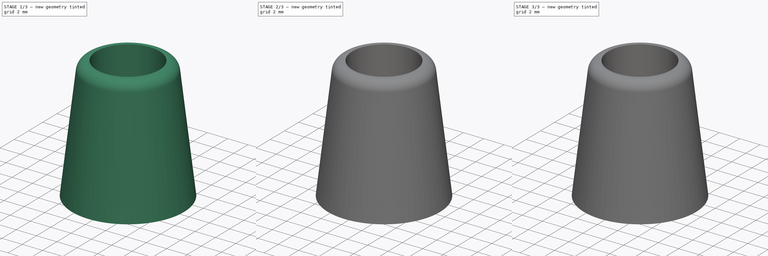
[diagram: build sequence overview — one tinted view per stage of 3, left to right]
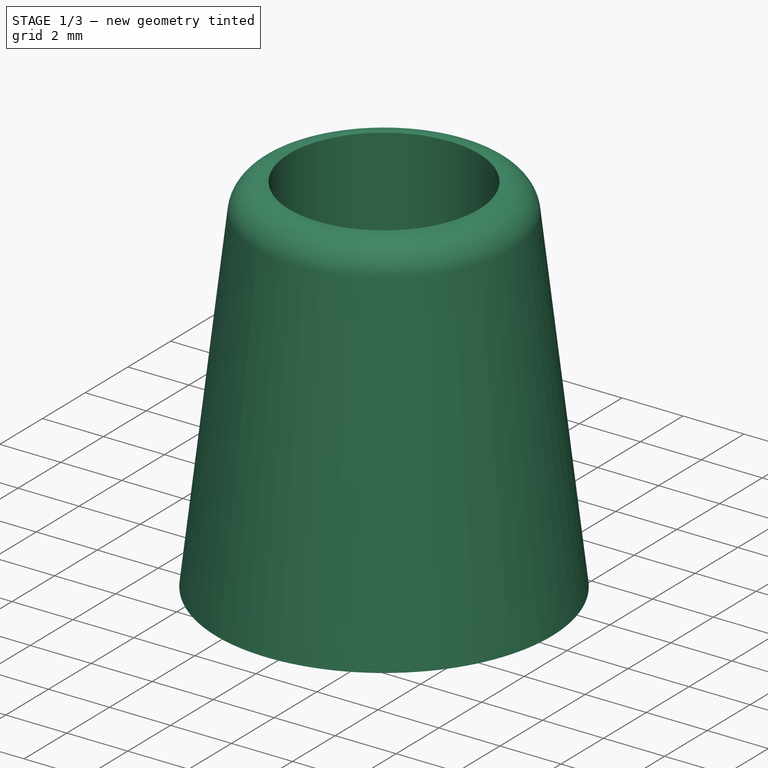
[diagram: stage 1 of 3 — iso view after this stage's code; geometry added in this stage tinted green]
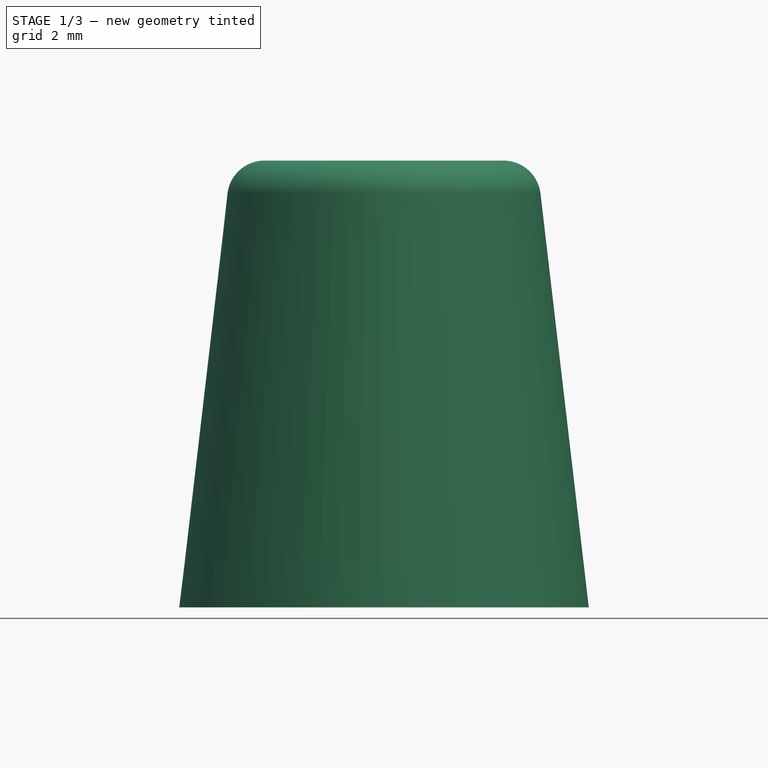
[diagram: stage 1 of 3 — front view after this stage's code; geometry added in this stage tinted green]
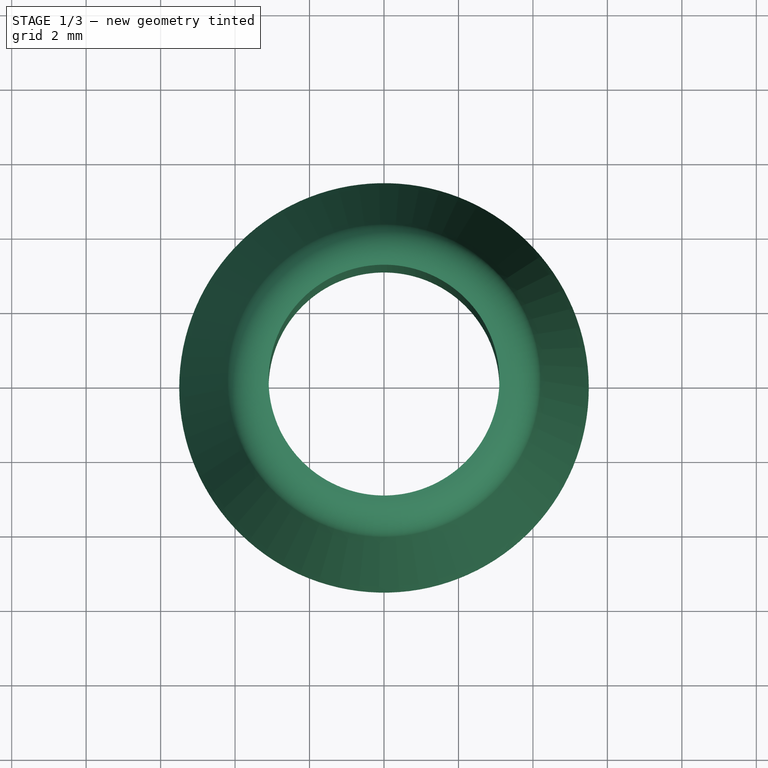
[diagram: stage 1 of 3 — top view after this stage's code; geometry added in this stage tinted green]
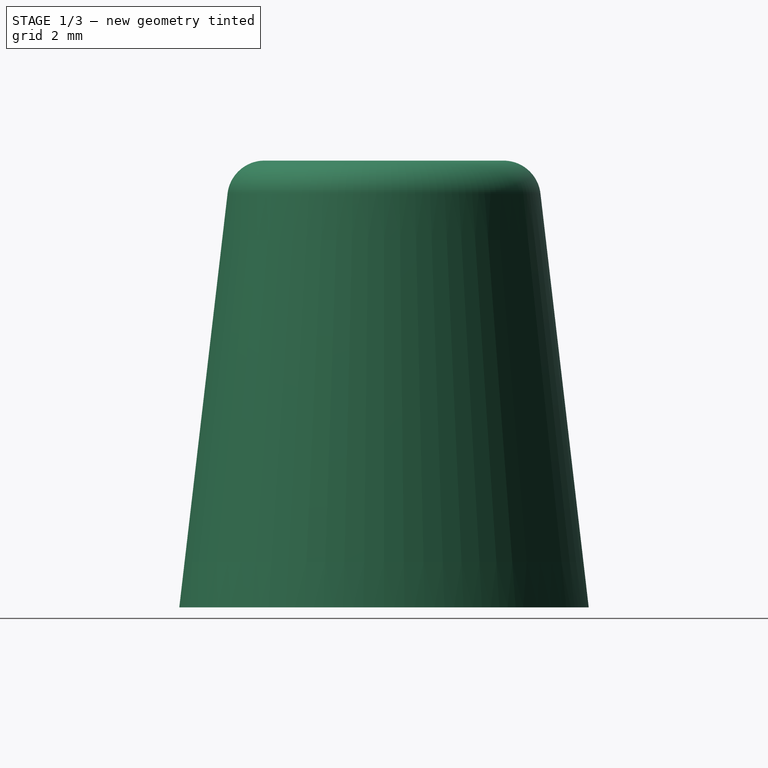
[diagram: stage 1 of 3 — right view after this stage's code; geometry added in this stage tinted green]
FCSTD DOCUMENT  (FreeCAD 0.21RUnknown)
Label: drill-alignment-tool
License: All rights reserved
LicenseURL: http://en.wikipedia.org/wiki/All_rights_reserved
objects: Sketcher::SketchObject×3, PartDesign::Fillet×2, PartDesign::Body×2, Spreadsheet::Sheet×1, PartDesign::Pad×1, PartDesign::AdditiveLoft×1, Part::Cut×1
note: 14 computed .brp shape members not serialized (recipe doc carries the construction recipe); baked Part::Feature solids carry a one-line shape summary decoded from their .brp

FEATURE [PartDesign::Body] Body002  label="Index"
  Group = -> [Sketch003,Pad001,Fillet]
  Origin = -> Origin002
  Tip = -> Fillet
FEATURE [PartDesign::AdditiveLoft] AdditiveLoft
  Closed = false
  Profile = -> Sketch001
  Ruled = false
  Sections = -> [Sketch002]
FEATURE [PartDesign::Fillet] Fillet001
  Base = -> AdditiveLoft [Edge5]
  BaseFeature = -> AdditiveLoft
  Radius = 1
  SupportTransform = false
  UseAllEdges = false
  expr: Radius = (<<Spreadsheet>>.Head_R - <<Spreadsheet>>.Head_Inner_R) * 0.5
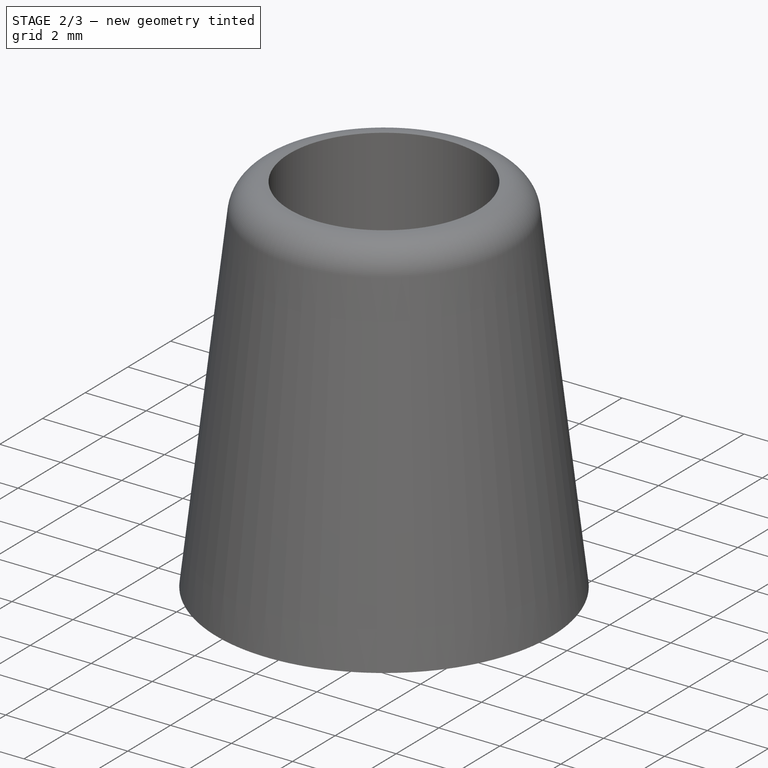
[diagram: stage 2 of 3 — iso view after this stage's code; geometry added in this stage tinted green]
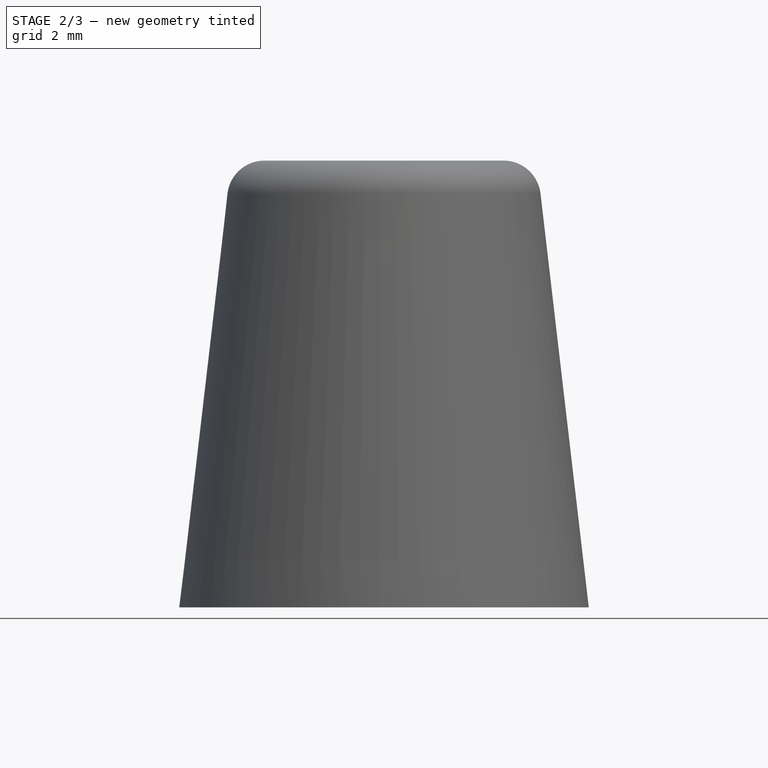
[diagram: stage 2 of 3 — front view after this stage's code; geometry added in this stage tinted green]
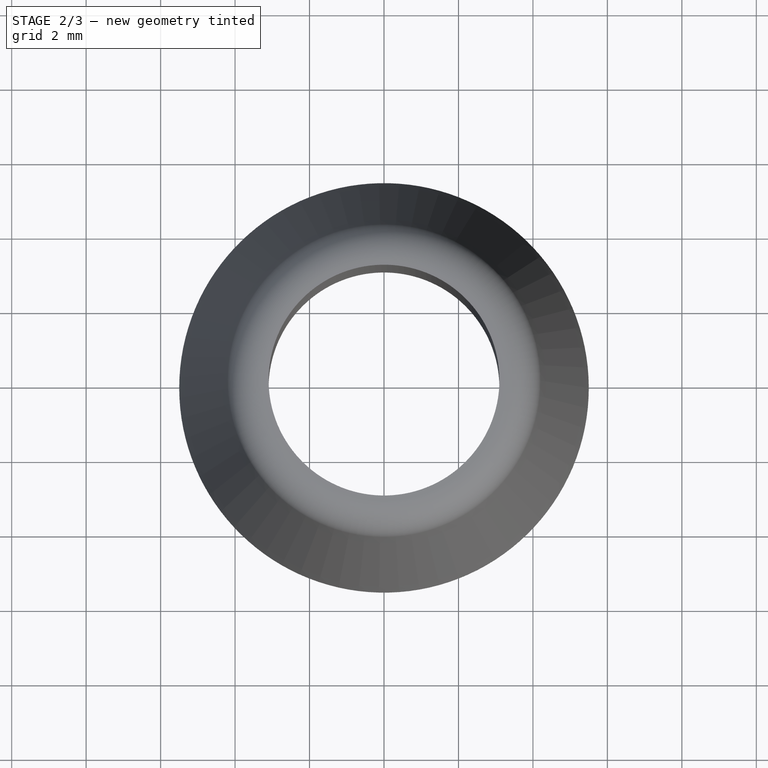
[diagram: stage 2 of 3 — top view after this stage's code; geometry added in this stage tinted green]
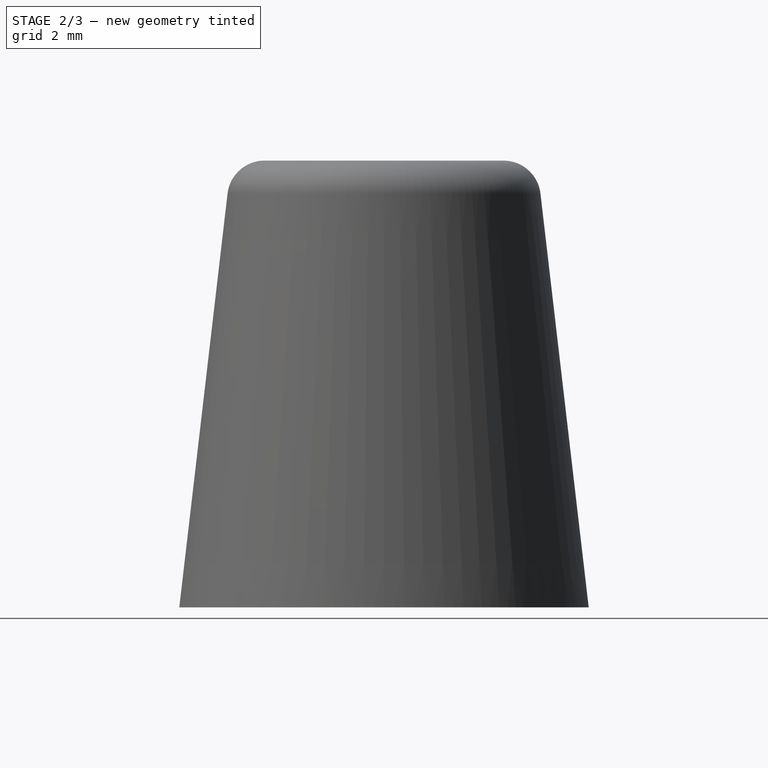
[diagram: stage 2 of 3 — right view after this stage's code; geometry added in this stage tinted green]
FEATURE [Spreadsheet::Sheet] Spreadsheet
  cells = A1='TOOL; A2='NAME; B2='DEFAULT; C2='VALUE; D2='COMMENT; A3='Tool_Size; B3==5 mm; C3(Tool_Size)==6 mm; D3='Shank diameter [+-0.1mm] of the tool (the part that goes in the drill); A4='Tool_Tolerance; B4==0.2 mm; C4(Tool_Tolerance)==0.2 mm; D4='Tolerance between the tool and the part, 0.2mm recommended; D5='DRILL SLOWLY!; A7='PART; A8='NAME; B8='DEFAULT; C8='VALUE; D8='COMMENT; A9='Head_R; B9==7.6 mm; C9(Head_R)==Tool_Size + Tool_Tolerance + 5 * Printer_Wall_Thickness; D9='6 Walls; A10='Head_Inner_R; B10==5.2 mm; C10(Head_Inner_R)==Feet_Inner_R; A11='Feet_R; B11==10 mm; C11(Feet_R)==Tool_Size + Tool_Tolerance + 12 * Printer_Wall_Thickness; A12='Feet_Inner_R; B12==5 mm; C12(Feet_Inner_R)==Tool_Size + Tool_Tolerance; A13='Part_Height; B13==6 mm; C13(Part_Height)==Printer_Layer_Height * 60; A15='INDEX; A16='NAME; B16='DEFAULT; C16='VALUE; D16='COMMENT; A17='Index_R; C17(Index_R)==Tool_Size + Tool_Tolerance + 4 * Printer_Wall_Thickness; A18='Index_Height; C18(Index_Height)==8 * Printer_Wall_Thickness; A20='3D_Printer Settings; A21='NAME; B21='DEFAULT; C21='VALUE; D21='COMMENT; A22='Printer_Layer_Height; B22==0.2 mm; C22(Printer_Layer_Height)==0.2 mm; A23='Printer_Wall_Thickness; B23==0.4 mm; C23(Printer_Wall_Thickness)==0.4 mm; D23='Rated at least brass hardness; A24='Material; B24='rPLA; C24='rPLA; A25='Nozzle Temperature; B25==480 K; C25==480 K
FEATURE [Sketcher::SketchObject] Sketch001  label="Feet"
  FullyConstrained = true
  MapMode = 5
  Support = -> [XY_Plane001]
  expr: Constraints[1] = Spreadsheet.Feet_Inner_R
  expr: Constraints[3] = Spreadsheet.Feet_R
  sketch-geometry (2):
    g0: Circle CenterX=0 CenterY=0 CenterZ=0 NormalX=0 NormalY=0 NormalZ=1 AngleXU=0 Radius=3.1
    g1: Circle CenterX=0 CenterY=0 CenterZ=0 NormalX=0 NormalY=0 NormalZ=1 AngleXU=0 Radius=5.5
  constraints (4):
    c: Coincident(g0,g-1)
    c: Diameter(g0) = 6.2
    c: Coincident(g1,g0)
    c: Diameter(g1) = 11
FEATURE [Sketcher::SketchObject] Sketch002  label="Head"
  AttachmentOffset = pos=(0,0,12) rot=(0,0,1;0rad)
  FullyConstrained = true
  MapMode = 5
  Placement = pos=(0,0,12) rot=(0,0,1;0rad)
  Support = -> [XY_Plane001]
  expr: .AttachmentOffset.Base.z = Spreadsheet.Part_Height
  expr: Constraints[1] = Spreadsheet.Head_Inner_R
  expr: Constraints[3] = Spreadsheet.Head_R
  sketch-geometry (2):
    g0: Circle CenterX=0 CenterY=0 CenterZ=0 NormalX=0 NormalY=0 NormalZ=1 AngleXU=0 Radius=3.1
    g1: Circle CenterX=0 CenterY=0 CenterZ=0 NormalX=0 NormalY=0 NormalZ=1 AngleXU=0 Radius=4.1
  constraints (4):
    c: Coincident(g0,g-1)
    c: Diameter(g0) = 6.2
    c: Coincident(g1,g0)
    c: Diameter(g1) = 8.2
FEATURE [Sketcher::SketchObject] Sketch003
  FullyConstrained = true
  MapMode = 5
  Support = -> [XY_Plane002]
  expr: Constraints[1] = <<Spreadsheet>>.Index_R
  expr: Constraints[3] = <<Spreadsheet>>.Tool_Size + <<Spreadsheet>>.Tool_Tolerance
  sketch-geometry (2):
    g0: Circle CenterX=0 CenterY=0 CenterZ=0 NormalX=0 NormalY=0 NormalZ=1 AngleXU=0 Radius=3.9
    g1: Circle CenterX=0 CenterY=0 CenterZ=0 NormalX=0 NormalY=0 NormalZ=1 AngleXU=0 Radius=3.1
  constraints (4):
    c: Coincident(g0,g-1)
    c: Diameter(g0) = 7.8
    c: Coincident(g1,g0)
    c: Diameter(g1) = 6.2
FEATURE [PartDesign::Pad] Pad001
  Direction = (0,0,1)
  Length = 3.2
  Length2 = 10
  Profile = -> Sketch003
  ReferenceAxis = -> Sketch003 [N_Axis]
  Type = 0
  expr: Length = <<Spreadsheet>>.Index_Height
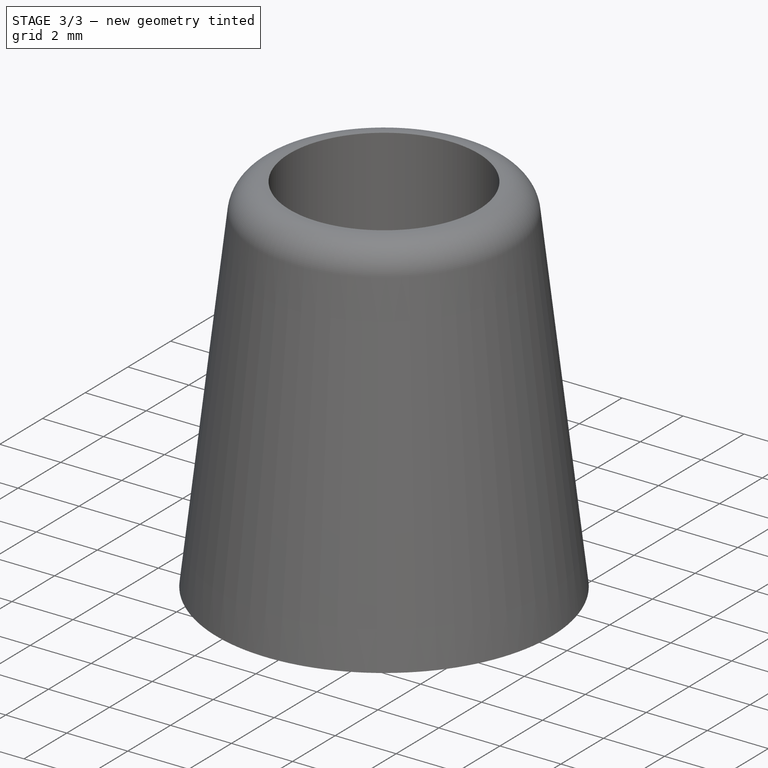
[diagram: stage 3 of 3 — iso view after this stage's code; geometry added in this stage tinted green]
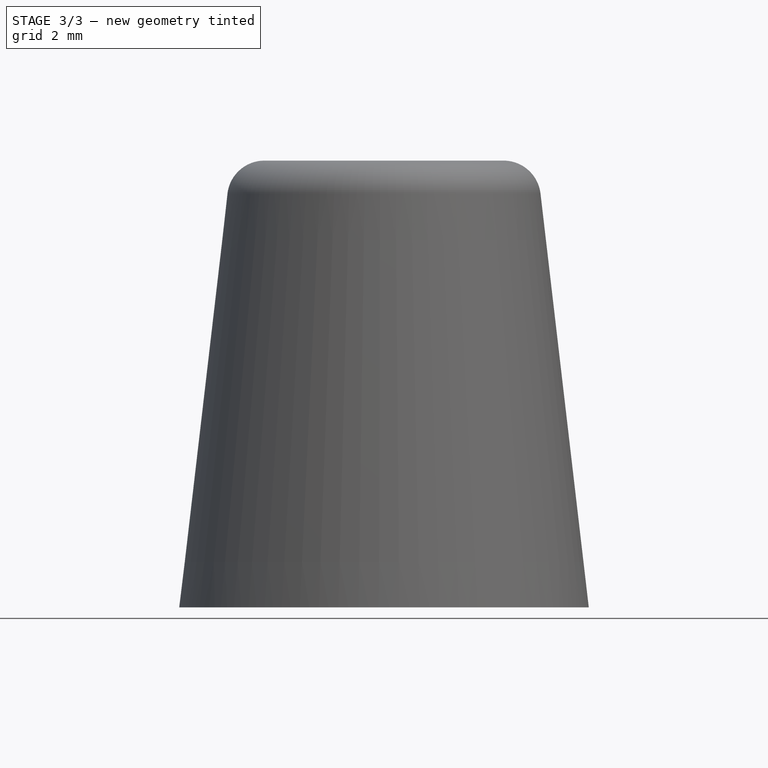
[diagram: stage 3 of 3 — front view after this stage's code; geometry added in this stage tinted green]
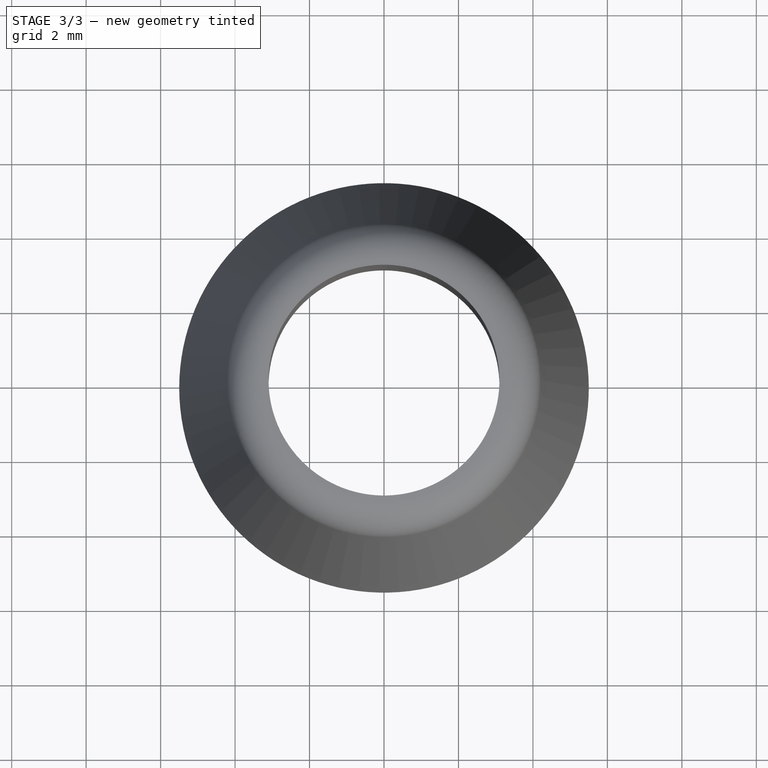
[diagram: stage 3 of 3 — top view after this stage's code; geometry added in this stage tinted green]
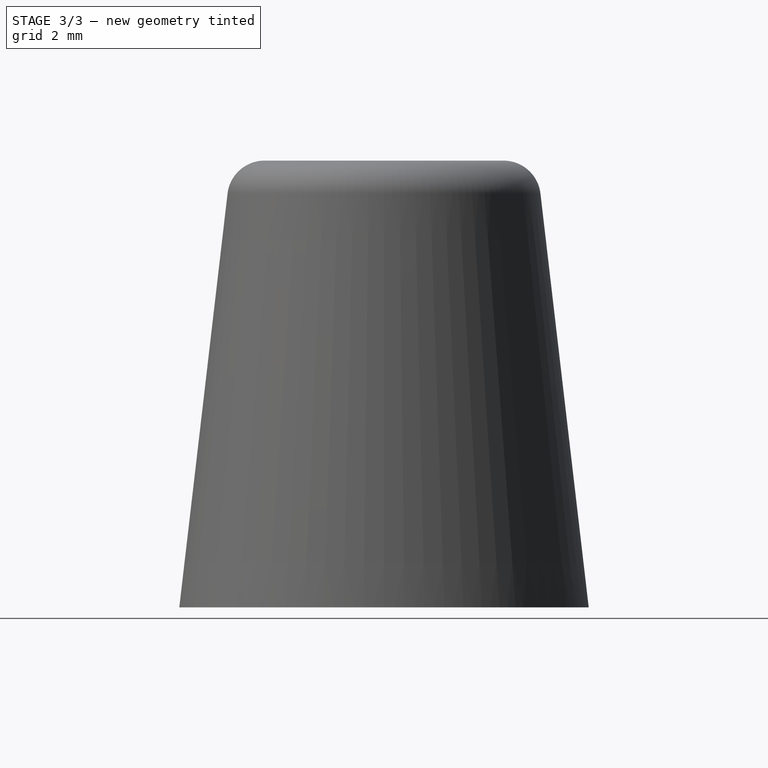
[diagram: stage 3 of 3 — right view after this stage's code; geometry added in this stage tinted green]
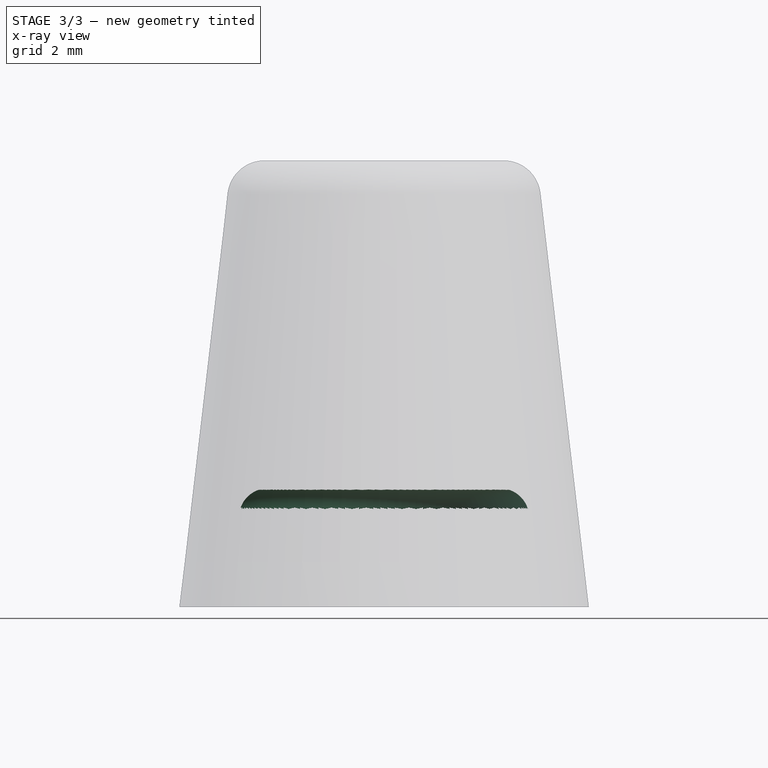
[diagram: stage 3 of 3 — x-ray composite at the front view; earlier geometry ghosted, this stage's added geometry solid]
FEATURE [PartDesign::Fillet] Fillet
  Base = -> Pad001 [Edge3]
  BaseFeature = -> Pad001
  Radius = 0.79
  SupportTransform = false
  UseAllEdges = false
  expr: Radius = (<<Spreadsheet>>.Index_R - (<<Spreadsheet>>.Tool_Size + <<Spreadsheet>>.Tool_Tolerance)) * 0.5 - 0.01 mm
FEATURE [PartDesign::Body] Body001  label="Part"
  Group = -> [Sketch001,Sketch002,AdditiveLoft,Fillet001]
  Origin = -> Origin001
  Tip = -> Fillet001
  expr: .Placement.Base.z = 0
FEATURE [Part::Cut] Cut
  Base = -> Body001
  Tool = -> Body002
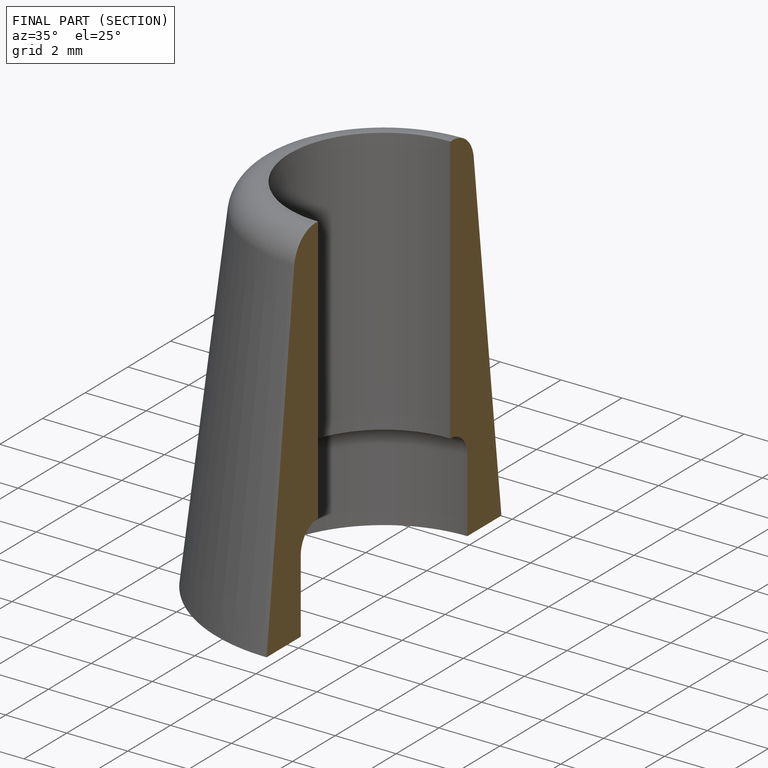
[diagram: finished part — half-section view (interior)]
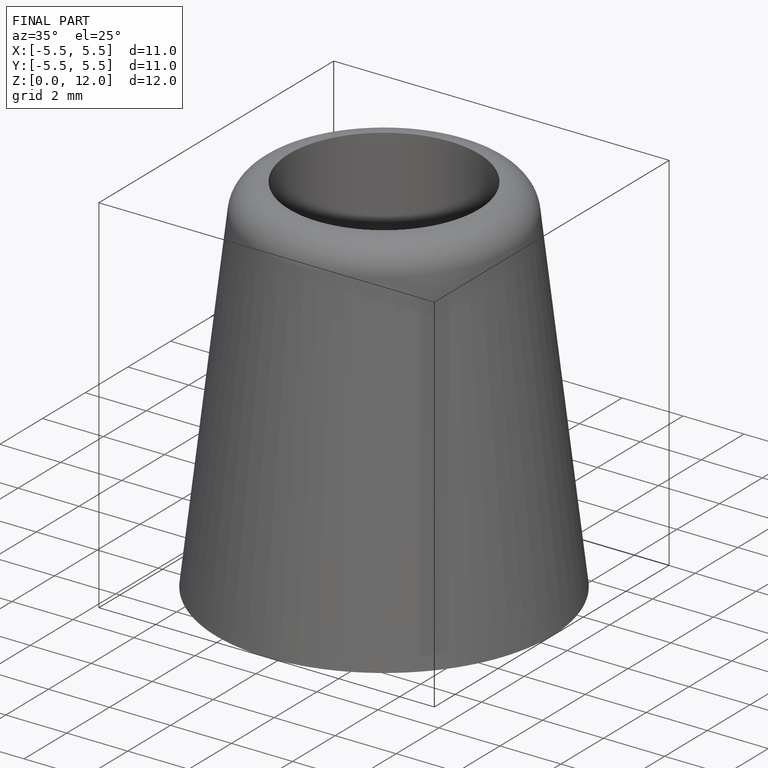
[diagram: finished part — iso view with bounding-box wireframe]
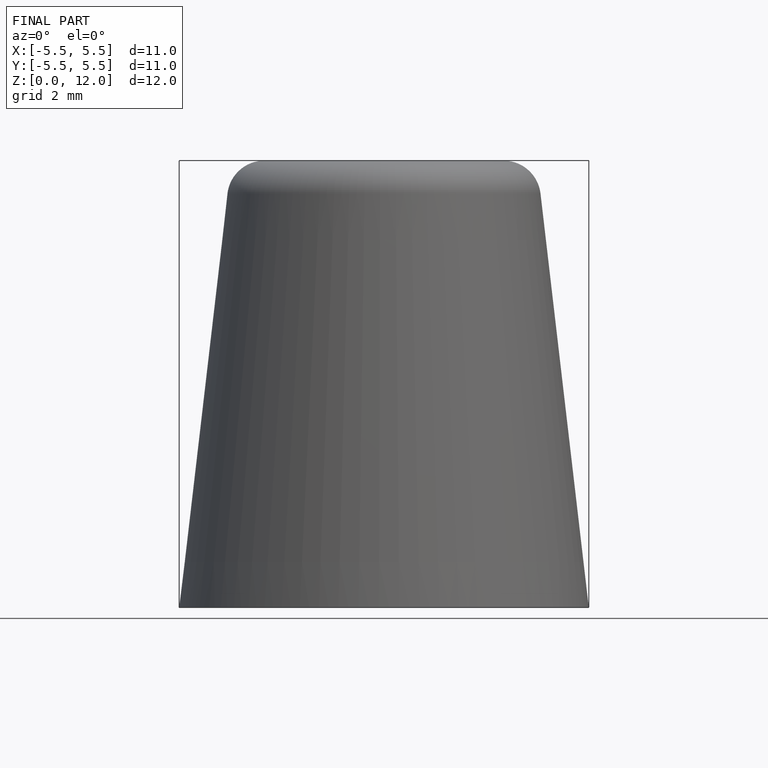
[diagram: finished part — front view with bounding-box wireframe]
